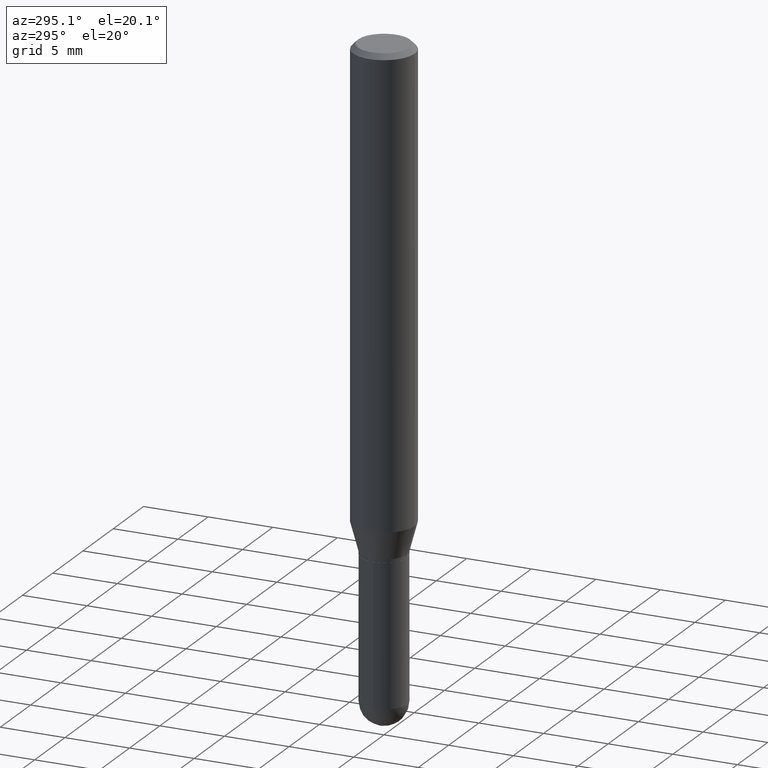
[diagram: clean part render]
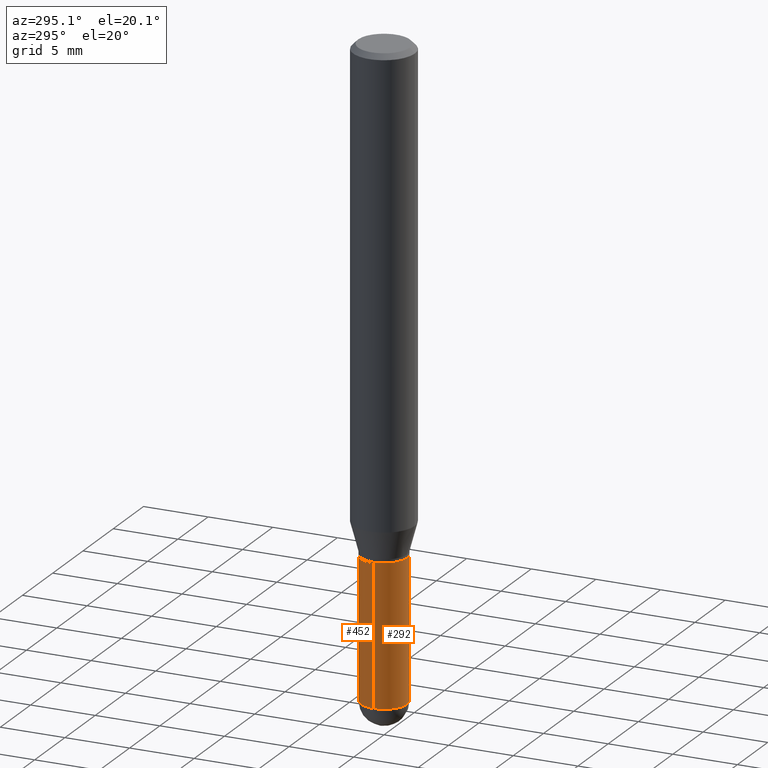
[diagram: same view with one multi-face feature highlighted, each face labeled with its STEP entity id]
A machine part, auxiliary view. The highlighted faces form ONE feature: a constant-radius fillet chain: 2 tangent blend faces with common blend radius 1.7856 mm. The faces share edges in the B-rep.
Their STEP definitions:
[1] entity #292 (Cylinder):
#4 = DIRECTION ( 'NONE',  ( 1.000000000000000000, -6.982962677686273810E-15, 0.000000000000000000 ) ) ;
#14 = DIRECTION ( 'NONE',  ( 1.000000000000000000, -6.982962677686261189E-15, 0.000000000000000000 ) ) ;
#32 = AXIS2_PLACEMENT_3D ( 'NONE', #91, #331, #14 ) ;
#36 = DIRECTION ( 'NONE',  ( -2.445468806185136597E-29, 3.491481338843145583E-15, 1.000000000000000000 ) ) ;
#38 = CARTESIAN_POINT ( 'NONE',  ( -0.07030000000000004301, -5.487855230675816416E-15, -1.929699999999999971 ) ) ;
#79 = ORIENTED_EDGE ( 'NONE', *, *, #181, .F. ) ;
#83 = AXIS2_PLACEMENT_3D ( 'NONE', #203, #160, #162 ) ;
#85 = ORIENTED_EDGE ( 'NONE', *, *, #148, .T. ) ;
#90 = EDGE_CURVE ( 'NONE', #396, #508, #209, .T. ) ;
#91 = CARTESIAN_POINT ( 'NONE',  ( 4.719021155295457704E-29, -6.737511539565617508E-15, -1.929699999999999971 ) ) ;
#95 = AXIS2_PLACEMENT_3D ( 'NONE', #146, #36, #468 ) ;
#110 = VERTEX_POINT ( 'NONE', #397 ) ;
#116 = LINE ( 'NONE', #442, #199 ) ;
#121 = CIRCLE ( 'NONE', #95, 0.07030000000000004301 ) ;
#142 = CARTESIAN_POINT ( 'NONE',  ( -0.07030000000000007077, -5.487855230675816416E-15, -1.499999999999999778 ) ) ;
#146 = CARTESIAN_POINT ( 'NONE',  ( 4.719021155295457704E-29, -6.737511539565617508E-15, -1.929699999999999971 ) ) ;
#148 = EDGE_CURVE ( 'NONE', #243, #110, #320, .T. ) ;
#152 = CARTESIAN_POINT ( 'NONE',  ( -0.07030000000000004301, 4.995115432393507363E-16, -3.458011368449201672E-30 ) ) ;
#160 = DIRECTION ( 'NONE',  ( -2.445468806185136597E-29, 3.491481338843145583E-15, 1.000000000000000000 ) ) ;
#162 = DIRECTION ( 'NONE',  ( 1.000000000000000000, -6.982962677686268288E-15, 4.876176775795936353E-29 ) ) ;
#178 = CARTESIAN_POINT ( 'NONE',  ( 0.07030000000000005689, -5.728124284506063124E-15, -1.499999999999999778 ) ) ;
#181 = EDGE_CURVE ( 'NONE', #235, #396, #438, .T. ) ;
#185 = ORIENTED_EDGE ( 'NONE', *, *, #354, .T. ) ;
#191 = CARTESIAN_POINT ( 'NONE',  ( 3.668203209277704335E-29, -5.237222008264717388E-15, -1.499999999999999778 ) ) ;
#199 = VECTOR ( 'NONE', #326, 39.37007874015748143 ) ;
#203 = CARTESIAN_POINT ( 'NONE',  ( 0.000000000000000000, 0.000000000000000000, 0.000000000000000000 ) ) ;
#209 = CIRCLE ( 'NONE', #404, 0.07030000000000005689 ) ;
#235 = VERTEX_POINT ( 'NONE', #38 ) ;
#243 = VERTEX_POINT ( 'NONE', #472 ) ;
#259 = EDGE_CURVE ( 'NONE', #110, #508, #116, .T. ) ;
#292 = ADVANCED_FACE ( 'NONE', ( #325 ), #486, .T. ) ;
#320 = CIRCLE ( 'NONE', #32, 0.07030000000000004301 ) ;
#323 = DIRECTION ( 'NONE',  ( -2.445468806185136877E-29, 3.491481338843145188E-15, 1.000000000000000000 ) ) ;
#325 = FACE_OUTER_BOUND ( 'NONE', #505, .T. ) ;
#326 = DIRECTION ( 'NONE',  ( -2.445468806185136877E-29, 3.491481338843145188E-15, 1.000000000000000000 ) ) ;
#331 = DIRECTION ( 'NONE',  ( -2.445468806185136597E-29, 3.491481338843145583E-15, 1.000000000000000000 ) ) ;
#346 = ORIENTED_EDGE ( 'NONE', *, *, #90, .F. ) ;
#347 = ORIENTED_EDGE ( 'NONE', *, *, #259, .T. ) ;
#354 = EDGE_CURVE ( 'NONE', #235, #243, #121, .T. ) ;
#356 = DIRECTION ( 'NONE',  ( -2.445468806185136597E-29, 3.491481338843145583E-15, 1.000000000000000000 ) ) ;
#375 = VECTOR ( 'NONE', #323, 39.37007874015748143 ) ;
#396 = VERTEX_POINT ( 'NONE', #142 ) ;
#397 = CARTESIAN_POINT ( 'NONE',  ( 0.07030000000000004301, -6.478269050156512001E-15, -1.929699999999999971 ) ) ;
#404 = AXIS2_PLACEMENT_3D ( 'NONE', #191, #356, #4 ) ;
#438 = LINE ( 'NONE', #152, #375 ) ;
#442 = CARTESIAN_POINT ( 'NONE',  ( 0.07030000000000004301, -4.909022762413449473E-16, 3.427952273384545239E-30 ) ) ;
#468 = DIRECTION ( 'NONE',  ( 1.000000000000000000, -6.982962677686261189E-15, 0.000000000000000000 ) ) ;
#472 = CARTESIAN_POINT ( 'NONE',  ( -4.995115432393033060E-16, -0.07030000000000674598, -1.929699999999999527 ) ) ;
#486 = CYLINDRICAL_SURFACE ( 'NONE', #83, 0.07030000000000004301 ) ;
#505 = EDGE_LOOP ( 'NONE', ( #79, #185, #85, #347, #346 ) ) ;
#508 = VERTEX_POINT ( 'NONE', #178 ) ;
[2] entity #452 (Cylinder):
#17 = CYLINDRICAL_SURFACE ( 'NONE', #503, 0.07030000000000004301 ) ;
#38 = CARTESIAN_POINT ( 'NONE',  ( -0.07030000000000004301, -5.487855230675816416E-15, -1.929699999999999971 ) ) ;
#42 = DIRECTION ( 'NONE',  ( 1.000000000000000000, -6.982962677686273810E-15, 0.000000000000000000 ) ) ;
#48 = CARTESIAN_POINT ( 'NONE',  ( 4.909022762413921804E-16, 0.07029999999999332616, -1.929700000000000193 ) ) ;
#64 = CARTESIAN_POINT ( 'NONE',  ( 0.000000000000000000, 0.000000000000000000, 0.000000000000000000 ) ) ;
#67 = CARTESIAN_POINT ( 'NONE',  ( 4.719021155295457704E-29, -6.737511539565617508E-15, -1.929699999999999971 ) ) ;
#81 = EDGE_CURVE ( 'NONE', #508, #396, #216, .T. ) ;
#110 = VERTEX_POINT ( 'NONE', #397 ) ;
#116 = LINE ( 'NONE', #442, #199 ) ;
#142 = CARTESIAN_POINT ( 'NONE',  ( -0.07030000000000007077, -5.487855230675816416E-15, -1.499999999999999778 ) ) ;
#152 = CARTESIAN_POINT ( 'NONE',  ( -0.07030000000000004301, 4.995115432393507363E-16, -3.458011368449201672E-30 ) ) ;
#170 = DIRECTION ( 'NONE',  ( 1.000000000000000000, -6.982962677686261189E-15, 0.000000000000000000 ) ) ;
#176 = FACE_OUTER_BOUND ( 'NONE', #392, .T. ) ;
#178 = CARTESIAN_POINT ( 'NONE',  ( 0.07030000000000005689, -5.728124284506063124E-15, -1.499999999999999778 ) ) ;
#180 = CIRCLE ( 'NONE', #298, 0.07030000000000004301 ) ;
#181 = EDGE_CURVE ( 'NONE', #235, #396, #438, .T. ) ;
#199 = VECTOR ( 'NONE', #326, 39.37007874015748143 ) ;
#213 = DIRECTION ( 'NONE',  ( -2.445468806185136597E-29, 3.491481338843145583E-15, 1.000000000000000000 ) ) ;
#216 = CIRCLE ( 'NONE', #242, 0.07030000000000005689 ) ;
#228 = CARTESIAN_POINT ( 'NONE',  ( 4.719021155295457704E-29, -6.737511539565617508E-15, -1.929699999999999971 ) ) ;
#232 = DIRECTION ( 'NONE',  ( -2.445468806185136597E-29, 3.491481338843145583E-15, 1.000000000000000000 ) ) ;
#234 = ORIENTED_EDGE ( 'NONE', *, *, #338, .T. ) ;
#235 = VERTEX_POINT ( 'NONE', #38 ) ;
#238 = ORIENTED_EDGE ( 'NONE', *, *, #181, .T. ) ;
#239 = ORIENTED_EDGE ( 'NONE', *, *, #403, .T. ) ;
#242 = AXIS2_PLACEMENT_3D ( 'NONE', #443, #437, #42 ) ;
#259 = EDGE_CURVE ( 'NONE', #110, #508, #116, .T. ) ;
#298 = AXIS2_PLACEMENT_3D ( 'NONE', #67, #232, #351 ) ;
#315 = VERTEX_POINT ( 'NONE', #48 ) ;
#323 = DIRECTION ( 'NONE',  ( -2.445468806185136877E-29, 3.491481338843145188E-15, 1.000000000000000000 ) ) ;
#326 = DIRECTION ( 'NONE',  ( -2.445468806185136877E-29, 3.491481338843145188E-15, 1.000000000000000000 ) ) ;
#338 = EDGE_CURVE ( 'NONE', #315, #235, #180, .T. ) ;
#351 = DIRECTION ( 'NONE',  ( 1.000000000000000000, -6.982962677686261189E-15, 0.000000000000000000 ) ) ;
#367 = CIRCLE ( 'NONE', #406, 0.07030000000000004301 ) ;
#373 = DIRECTION ( 'NONE',  ( -2.445468806185136597E-29, 3.491481338843145583E-15, 1.000000000000000000 ) ) ;
#375 = VECTOR ( 'NONE', #323, 39.37007874015748143 ) ;
#392 = EDGE_LOOP ( 'NONE', ( #234, #238, #400, #473, #239 ) ) ;
#396 = VERTEX_POINT ( 'NONE', #142 ) ;
#397 = CARTESIAN_POINT ( 'NONE',  ( 0.07030000000000004301, -6.478269050156512001E-15, -1.929699999999999971 ) ) ;
#400 = ORIENTED_EDGE ( 'NONE', *, *, #81, .F. ) ;
#403 = EDGE_CURVE ( 'NONE', #110, #315, #367, .T. ) ;
#406 = AXIS2_PLACEMENT_3D ( 'NONE', #228, #213, #170 ) ;
#437 = DIRECTION ( 'NONE',  ( -2.445468806185136597E-29, 3.491481338843145583E-15, 1.000000000000000000 ) ) ;
#438 = LINE ( 'NONE', #152, #375 ) ;
#442 = CARTESIAN_POINT ( 'NONE',  ( 0.07030000000000004301, -4.909022762413449473E-16, 3.427952273384545239E-30 ) ) ;
#443 = CARTESIAN_POINT ( 'NONE',  ( 3.668203209277704335E-29, -5.237222008264717388E-15, -1.499999999999999778 ) ) ;
#452 = ADVANCED_FACE ( 'NONE', ( #176 ), #17, .T. ) ;
#473 = ORIENTED_EDGE ( 'NONE', *, *, #259, .F. ) ;
#495 = DIRECTION ( 'NONE',  ( 1.000000000000000000, -6.982962677686268288E-15, 4.876176775795936353E-29 ) ) ;
#503 = AXIS2_PLACEMENT_3D ( 'NONE', #64, #373, #495 ) ;
#508 = VERTEX_POINT ( 'NONE', #178 ) ;